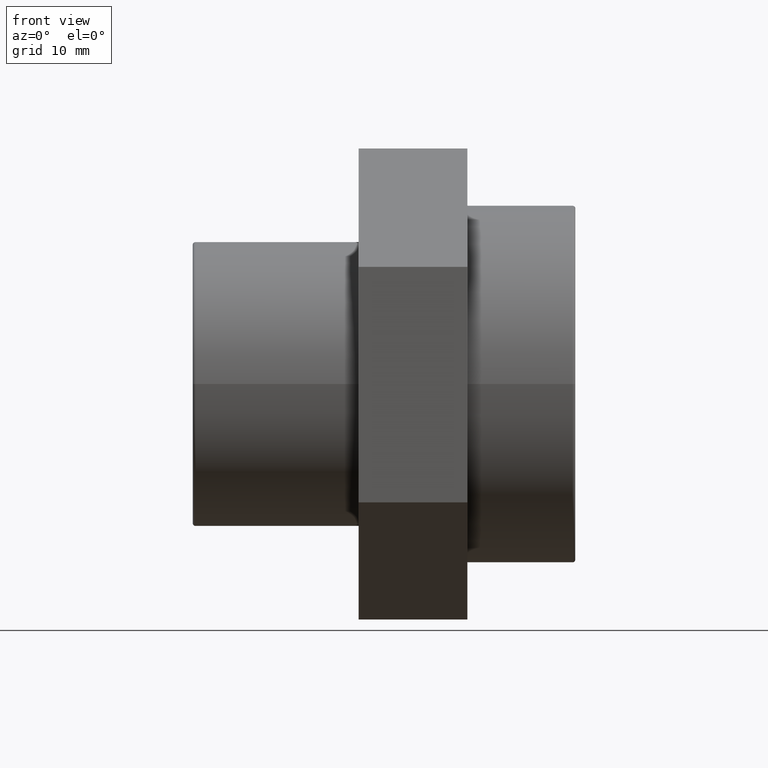
[diagram: clean part render]
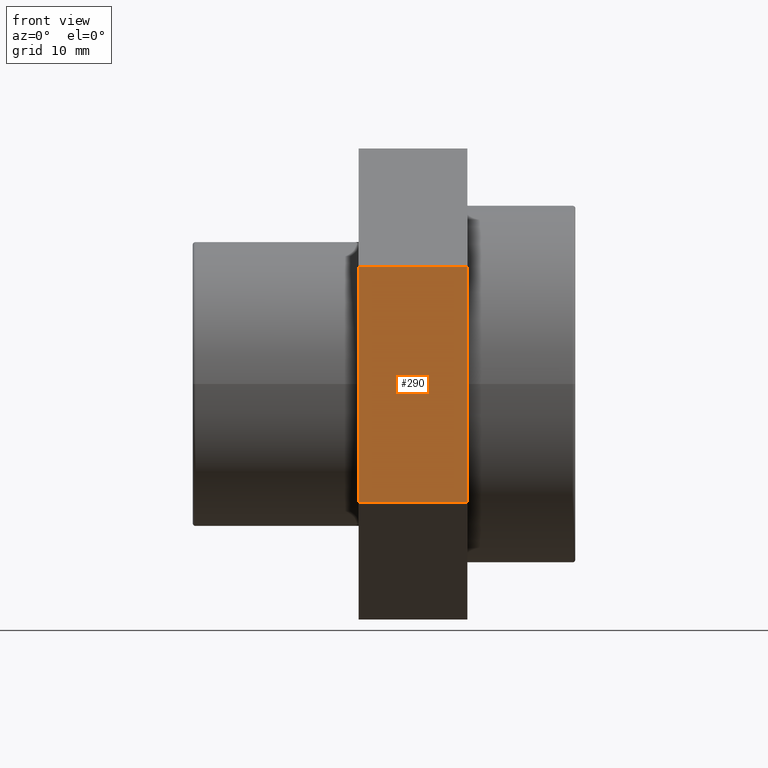
[diagram: same view with one face highlighted and labeled with its STEP entity id]
A machine part, front view. The second image highlights one B-rep face of the part: STEP entity #290.
In plain terms, the highlighted planar face has unit normal (0, -1, -0.0029).
Its self-contained STEP definition (entity closure, byte-faithful):
#15=LINE('',#466,#33);
#16=LINE('',#468,#34);
#17=LINE('',#470,#35);
#18=LINE('',#471,#36);
#33=VECTOR('',#386,25.9807621135331);
#34=VECTOR('',#387,12.);
#35=VECTOR('',#388,25.9807621135331);
#36=VECTOR('',#389,12.);
#58=PLANE('',#325);
#93=FACE_OUTER_BOUND('',#124,.T.);
#124=EDGE_LOOP('',(#232,#233,#234,#235));
#166=VERTEX_POINT('',#464);
#167=VERTEX_POINT('',#465);
#168=VERTEX_POINT('',#467);
#169=VERTEX_POINT('',#469);
#192=EDGE_CURVE('',#166,#167,#15,.T.);
#193=EDGE_CURVE('',#168,#167,#16,.T.);
#194=EDGE_CURVE('',#168,#169,#17,.T.);
#195=EDGE_CURVE('',#169,#166,#18,.T.);
#232=ORIENTED_EDGE('',*,*,#192,.T.);
#233=ORIENTED_EDGE('',*,*,#193,.F.);
#234=ORIENTED_EDGE('',*,*,#194,.T.);
#235=ORIENTED_EDGE('',*,*,#195,.T.);
#290=ADVANCED_FACE('',(#93),#58,.T.);
#325=AXIS2_PLACEMENT_3D('',#463,#384,#385);
#384=DIRECTION('center_axis',(2.46715206853622E-16,-0.999995862287351,-0.00287670091889414));
#385=DIRECTION('ref_axis',(0.,-0.00287670091889431,0.999995862287351));
#386=DIRECTION('',(-5.28441385864193E-19,0.00287670091889414,-0.999995862287351));
#387=DIRECTION('',(-1.,-2.46716227694478E-16,0.));
#388=DIRECTION('',(5.28441385864193E-19,-0.00287670091889414,0.999995862287351));
#389=DIRECTION('',(-1.,-2.46716227694478E-16,0.));
#463=CARTESIAN_POINT('Origin',(9.205,-22.4625374603426,-13.0550530769777));
#464=CARTESIAN_POINT('',(-2.795,-22.5372763425882,12.9256015356274));
#465=CARTESIAN_POINT('',(-2.795,-22.4625374603426,-13.0550530769777));
#466=CARTESIAN_POINT('',(-2.795,-22.481222180904,-6.5598894238264));
#467=CARTESIAN_POINT('',(9.205,-22.4625374603426,-13.0550530769777));
#468=CARTESIAN_POINT('',(9.205,-22.4625374603426,-13.0550530769777));
#469=CARTESIAN_POINT('',(9.205,-22.5372763425882,12.9256015356274));
#470=CARTESIAN_POINT('',(9.205,-22.4625374603426,-13.0550530769777));
#471=CARTESIAN_POINT('',(9.205,-22.5372763425882,12.9256015356274));